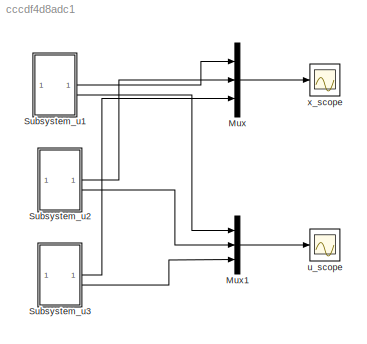
MODEL slx_cccdf4d8adc1
KIND model
CONFIG AbsTol = auto
CONFIG EnableMultiTasking = off
CONFIG FixedStep = auto
CONFIG MaxStep = auto
CONFIG MinStep = auto
CONFIG RelTol = 1e-3
CONFIG SampleTimeConstraint = Unconstrained
CONFIG SolverName = VariableStepAuto
CONFIG StartTime = 0.0
CONFIG StopTime = 10.0
BLOCK [Mux] Mux
  DisplayOption = bar
  Inputs = 3
BLOCK [Mux] Mux1
  DisplayOption = bar
  Inputs = 3
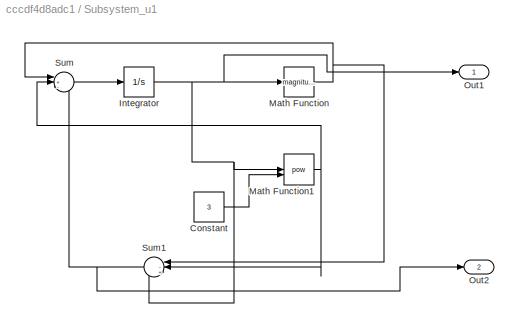
BLOCK [SubSystem] Subsystem_u1
BLOCK [Constant] Subsystem_u1/Constant
  Value = 3
BLOCK [Integrator] Subsystem_u1/Integrator
  InitialCondition = 10
BLOCK [Math] Subsystem_u1/Math Function
  Operator = magnitude^2
BLOCK [Math] Subsystem_u1/Math Function1
  Operator = pow
BLOCK [Outport] Subsystem_u1/Out1
BLOCK [Outport] Subsystem_u1/Out2
  Port = 2
BLOCK [Sum] Subsystem_u1/Sum
  Inputs = |+-+
BLOCK [Sum] Subsystem_u1/Sum1
  Inputs = |-+-
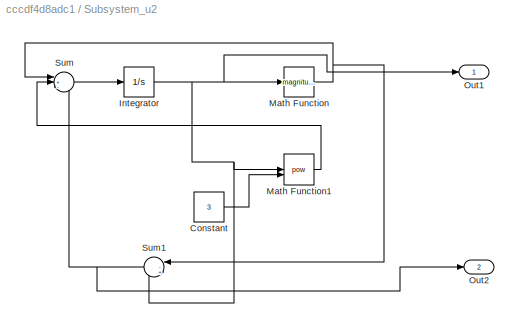
BLOCK [SubSystem] Subsystem_u2
BLOCK [Constant] Subsystem_u2/Constant
  Value = 3
BLOCK [Integrator] Subsystem_u2/Integrator
  InitialCondition = 10
BLOCK [Math] Subsystem_u2/Math Function
  Operator = magnitude^2
BLOCK [Math] Subsystem_u2/Math Function1
  Operator = pow
BLOCK [Outport] Subsystem_u2/Out1
BLOCK [Outport] Subsystem_u2/Out2
  Port = 2
BLOCK [Sum] Subsystem_u2/Sum
  Inputs = |+-+
BLOCK [Sum] Subsystem_u2/Sum1
  Inputs = |-+-
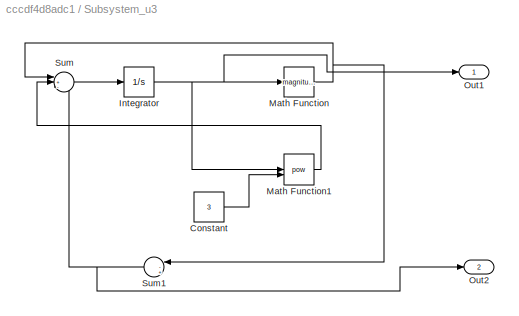
BLOCK [SubSystem] Subsystem_u3
BLOCK [Constant] Subsystem_u3/Constant
  Value = 3
BLOCK [Integrator] Subsystem_u3/Integrator
  InitialCondition = 10
BLOCK [Math] Subsystem_u3/Math Function
  Operator = magnitude^2
BLOCK [Math] Subsystem_u3/Math Function1
  Operator = pow
BLOCK [Outport] Subsystem_u3/Out1
BLOCK [Outport] Subsystem_u3/Out2
  Port = 2
BLOCK [Sum] Subsystem_u3/Sum
  Inputs = |+-+
BLOCK [Sum] Subsystem_u3/Sum1
  Inputs = |-+-
BLOCK [Scope] u_scope
  Floating = off
  NumInputPorts = 1
  ScopeSpecificationString = Simulink.scopes.TimeScopeBlockCfg('CurrentConfiguration', extmgr.ConfigurationSet(extmgr.Configuration('Core','General UI',true),extmgr.Configuration('Core','Source UI',true),extmgr.Configuration('Sources','WiredSimulink',true,'DataLoggingVariableName','ScopeData1'),extmgr.Configuration('Visuals','Time Domain',true,'SerializedDisplays',{struct('MinYLimReal','-235.00000','MaxYLimReal','1015.00000',...<+1454ch>
BLOCK [Scope] x_scope
  Floating = off
  NumInputPorts = 1
  ScopeSpecificationString = Simulink.scopes.TimeScopeBlockCfg('CurrentConfiguration', extmgr.ConfigurationSet(extmgr.Configuration('Core','General UI',true),extmgr.Configuration('Core','Source UI',true),extmgr.Configuration('Sources','WiredSimulink',true),extmgr.Configuration('Visuals','Time Domain',true,'SerializedDisplays',{struct('MinYLimReal','-1.24995','MaxYLimReal','11.24999','YLabelReal','','MinYLimMag','0.00000','Max...<+1372ch>
LINE Mux1:1 -> u_scope:1
LINE Mux:1 -> x_scope:1
LINE Subsystem_u1/Constant:1 -> Subsystem_u1/Math Function1:2
NET Subsystem_u1/Integrator:1 -> Subsystem_u1/Math Function1:1, Subsystem_u1/Math Function:1, Subsystem_u1/Out1:1, Subsystem_u1/Sum1:3
NET Subsystem_u1/Math Function1:1 -> Subsystem_u1/Sum1:2, Subsystem_u1/Sum:2
NET Subsystem_u1/Math Function:1 -> Subsystem_u1/Sum1:1, Subsystem_u1/Sum:1
NET Subsystem_u1/Sum1:1 -> Subsystem_u1/Out2:1, Subsystem_u1/Sum:3
LINE Subsystem_u1/Sum:1 -> Subsystem_u1/Integrator:1
LINE Subsystem_u1:1 -> Mux:1
LINE Subsystem_u1:2 -> Mux1:1
LINE Subsystem_u2/Constant:1 -> Subsystem_u2/Math Function1:2
NET Subsystem_u2/Integrator:1 -> Subsystem_u2/Math Function1:1, Subsystem_u2/Math Function:1, Subsystem_u2/Out1:1, Subsystem_u2/Sum1:3
LINE Subsystem_u2/Math Function1:1 -> Subsystem_u2/Sum:2
NET Subsystem_u2/Math Function:1 -> Subsystem_u2/Sum1:1, Subsystem_u2/Sum:1
NET Subsystem_u2/Sum1:1 -> Subsystem_u2/Out2:1, Subsystem_u2/Sum:3
LINE Subsystem_u2/Sum:1 -> Subsystem_u2/Integrator:1
LINE Subsystem_u2:1 -> Mux:2
LINE Subsystem_u2:2 -> Mux1:2
LINE Subsystem_u3/Constant:1 -> Subsystem_u3/Math Function1:2
NET Subsystem_u3/Integrator:1 -> Subsystem_u3/Math Function1:1, Subsystem_u3/Math Function:1, Subsystem_u3/Out1:1
LINE Subsystem_u3/Math Function1:1 -> Subsystem_u3/Sum:2
NET Subsystem_u3/Math Function:1 -> Subsystem_u3/Sum1:1, Subsystem_u3/Sum:1
NET Subsystem_u3/Sum1:1 -> Subsystem_u3/Out2:1, Subsystem_u3/Sum:3
LINE Subsystem_u3/Sum:1 -> Subsystem_u3/Integrator:1
LINE Subsystem_u3:1 -> Mux:3
LINE Subsystem_u3:2 -> Mux1:3
note: NET lines group one-source signal fan-out (src -> all destinations, sorted); 1:1 wires keep LINE
